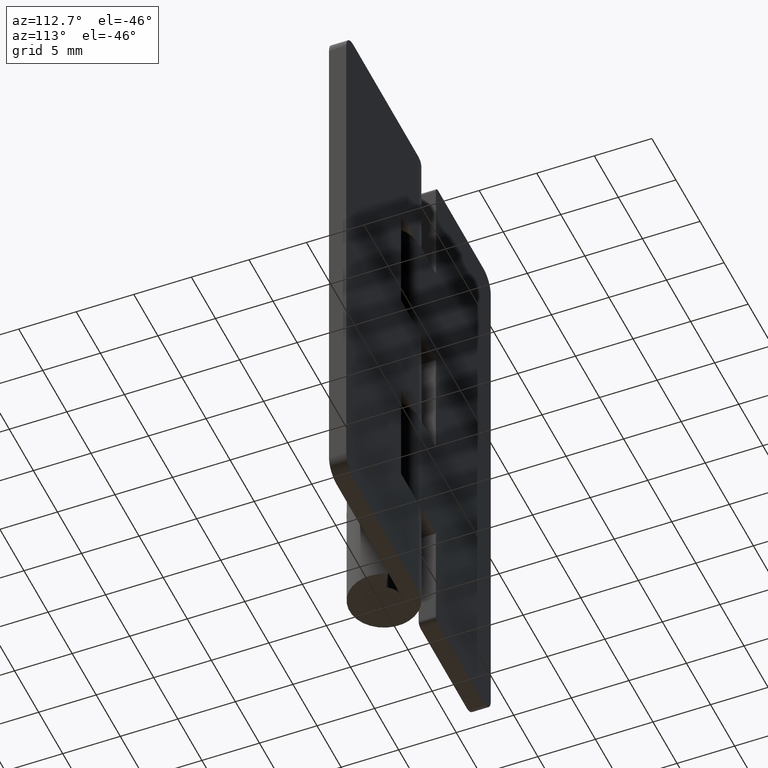
[diagram: clean part render]
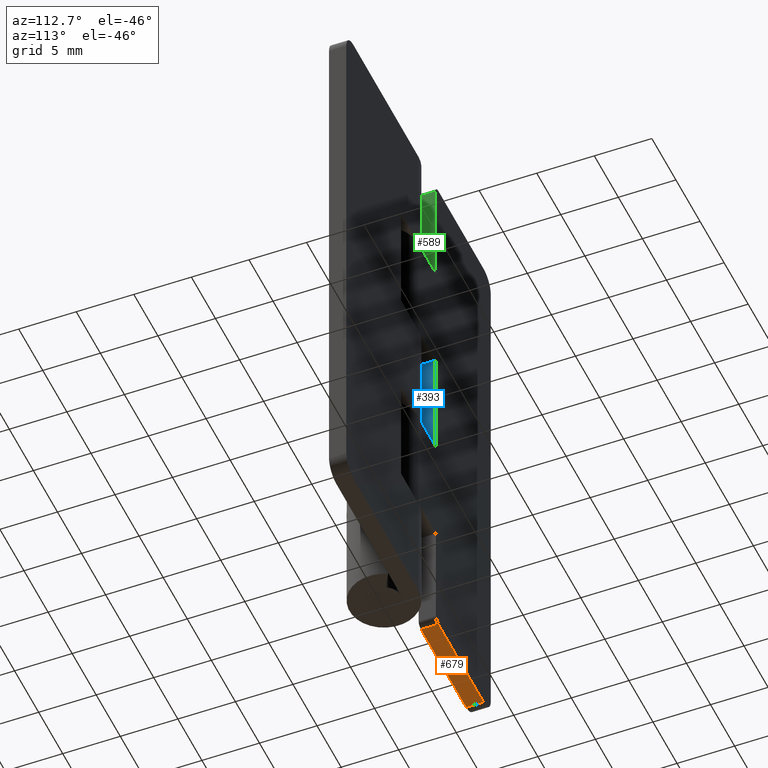
[diagram: same view with three faces highlighted in distinct colors, each labeled with its STEP entity id]
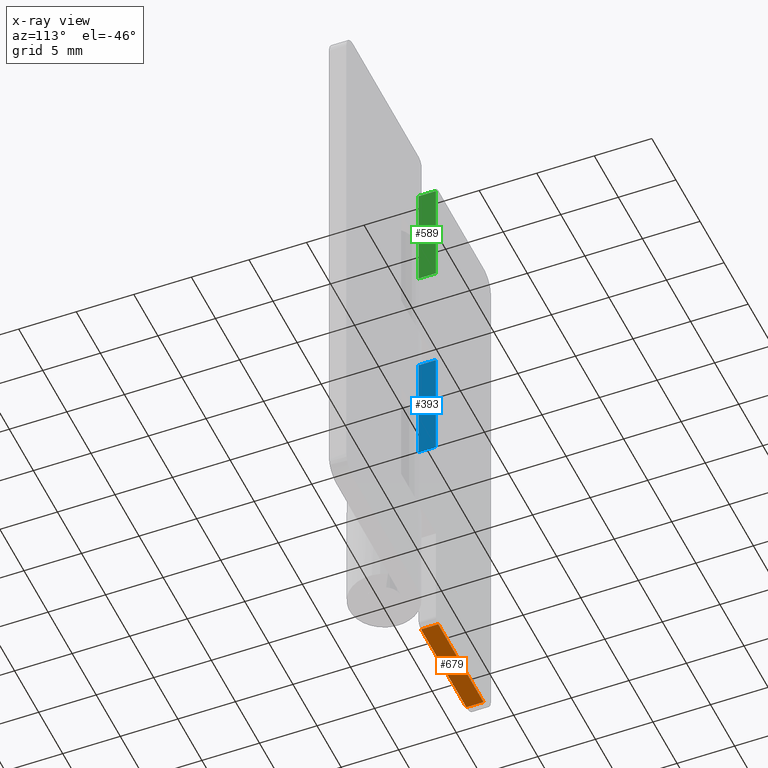
[diagram: x-ray of the same camera — body ghosted, the three highlighted faces saturated]
A machine part, auxiliary view with three faces highlighted in distinct colors.
The next image is the same camera in x-ray (body ghosted, the three faces saturated) — at least one of them is partly hidden behind the body in this view.
Their STEP definitions:

[orange] entity #679 — the highlighted face is a freeform B-spline surface patch.
#119=CARTESIAN_POINT('',(-4.099997999999999,1.500000000000000,0.0));
#120=VERTEX_POINT('',#119);
#136=CARTESIAN_POINT('',(-4.099997999999999,3.0,0.0));
#137=VERTEX_POINT('',#136);
#138=CARTESIAN_POINT('',(-4.099997999999999,3.0,0.0));
#139=CARTESIAN_POINT('',(-4.099997999999999,1.500000000000000,0.0));
#140=QUASI_UNIFORM_CURVE('',1,(#138,#139),.UNSPECIFIED.,.F.,.U.);
#141=EDGE_CURVE('',#137,#120,#140,.T.);
#243=CARTESIAN_POINT('',(-13.500000000000000,1.500000000000000,0.0));
#244=VERTEX_POINT('',#243);
#265=CARTESIAN_POINT('',(-13.500000000000000,3.0,0.0));
#266=VERTEX_POINT('',#265);
#280=CARTESIAN_POINT('',(-13.500000000000000,1.500000000000000,0.0));
#281=CARTESIAN_POINT('',(-13.500000000000000,3.0,0.0));
#282=QUASI_UNIFORM_CURVE('',1,(#280,#281),.UNSPECIFIED.,.F.,.U.);
#283=EDGE_CURVE('',#244,#266,#282,.T.);
#660=CARTESIAN_POINT('',(-13.969530081680970,1.425075002907291,0.0));
#661=CARTESIAN_POINT('',(-3.630467666191326,1.425075002907291,0.0));
#662=CARTESIAN_POINT('',(-13.969530081680970,3.074925037325845,0.0));
#663=CARTESIAN_POINT('',(-3.630467666191326,3.074925037325845,0.0));
#664=B_SPLINE_SURFACE_WITH_KNOTS('',1,1,((#660,#662),(#661,#663)),.UNSPECIFIED.,.F.,.F.,.U.,(2,2),(2,2),(0.0,10.339062415489650),(0.041708334948495,0.958291687403247),.UNSPECIFIED.);
#665=CARTESIAN_POINT('',(-13.500000000000000,3.0,0.0));
#666=CARTESIAN_POINT('',(-4.099997999999999,3.0,0.0));
#667=QUASI_UNIFORM_CURVE('',1,(#665,#666),.UNSPECIFIED.,.F.,.U.);
#668=EDGE_CURVE('',#266,#137,#667,.T.);
#669=ORIENTED_EDGE('',*,*,#668,.T.);
#670=ORIENTED_EDGE('',*,*,#141,.T.);
#671=CARTESIAN_POINT('',(-4.099997999999999,1.500000000000000,0.0));
#672=CARTESIAN_POINT('',(-13.500000000000000,1.500000000000000,0.0));
#673=QUASI_UNIFORM_CURVE('',1,(#671,#672),.UNSPECIFIED.,.F.,.U.);
#674=EDGE_CURVE('',#120,#244,#673,.T.);
#675=ORIENTED_EDGE('',*,*,#674,.T.);
#676=ORIENTED_EDGE('',*,*,#283,.T.);
#677=EDGE_LOOP('',(#669,#670,#675,#676));
#678=FACE_OUTER_BOUND('',#677,.T.);
#679=ADVANCED_FACE('',(#678),#664,.F.);

[blue] entity #393 — the highlighted face is a freeform B-spline surface patch.
#293=CARTESIAN_POINT('',(-3.599998000000000,3.0,20.0));
#294=VERTEX_POINT('',#293);
#302=CARTESIAN_POINT('',(-3.599998000000000,1.500000000000000,20.0));
#303=VERTEX_POINT('',#302);
#304=CARTESIAN_POINT('',(-3.599998000000000,1.500000000000000,20.0));
#305=CARTESIAN_POINT('',(-3.599998000000000,3.0,20.0));
#306=QUASI_UNIFORM_CURVE('',1,(#304,#305),.UNSPECIFIED.,.F.,.U.);
#307=EDGE_CURVE('',#303,#294,#306,.T.);
#366=CARTESIAN_POINT('',(-3.599998000000000,1.425075002907234,30.499499980618062));
#367=CARTESIAN_POINT('',(-3.599998000000000,1.425075002907234,19.500499751161041));
#368=CARTESIAN_POINT('',(-3.599998000000000,3.074925037325847,30.499499980618062));
#369=CARTESIAN_POINT('',(-3.599998000000000,3.074925037325847,19.500499751161041));
#370=B_SPLINE_SURFACE_WITH_KNOTS('',1,1,((#366,#368),(#367,#369)),.UNSPECIFIED.,.F.,.F.,.U.,(2,2),(2,2),(0.0,10.999000229457030),(0.041708334948495,0.958291687403247),.UNSPECIFIED.);
#371=ORIENTED_EDGE('',*,*,#307,.T.);
#372=CARTESIAN_POINT('',(-3.599998000000000,3.0,30.0));
#373=VERTEX_POINT('',#372);
#374=CARTESIAN_POINT('',(-3.599998000000000,3.0,30.0));
#375=CARTESIAN_POINT('',(-3.599998000000000,3.0,20.0));
#376=QUASI_UNIFORM_CURVE('',1,(#374,#375),.UNSPECIFIED.,.F.,.U.);
#377=EDGE_CURVE('',#373,#294,#376,.T.);
#378=ORIENTED_EDGE('',*,*,#377,.F.);
#379=CARTESIAN_POINT('',(-3.599998000000000,1.499999999999946,30.0));
#380=VERTEX_POINT('',#379);
#381=CARTESIAN_POINT('',(-3.599998000000000,1.499999999999946,30.0));
#382=CARTESIAN_POINT('',(-3.599998000000000,3.0,30.0));
#383=QUASI_UNIFORM_CURVE('',1,(#381,#382),.UNSPECIFIED.,.F.,.U.);
#384=EDGE_CURVE('',#380,#373,#383,.T.);
#385=ORIENTED_EDGE('',*,*,#384,.F.);
#386=CARTESIAN_POINT('',(-3.599998000000000,1.500000000000000,20.0));
#387=CARTESIAN_POINT('',(-3.599998000000000,1.499999999999946,30.0));
#388=QUASI_UNIFORM_CURVE('',1,(#386,#387),.UNSPECIFIED.,.F.,.U.);
#389=EDGE_CURVE('',#303,#380,#388,.T.);
#390=ORIENTED_EDGE('',*,*,#389,.F.);
#391=EDGE_LOOP('',(#371,#378,#385,#390));
#392=FACE_OUTER_BOUND('',#391,.T.);
#393=ADVANCED_FACE('',(#392),#370,.T.);

[green] entity #589 — the highlighted face is a freeform B-spline surface patch.
#58=CARTESIAN_POINT('',(-3.599998000000000,1.500000000000000,49.500000000000000));
#59=VERTEX_POINT('',#58);
#75=CARTESIAN_POINT('',(-3.599998000000000,3.0,49.500000000000000));
#76=VERTEX_POINT('',#75);
#77=CARTESIAN_POINT('',(-3.599998000000000,3.0,49.500000000000000));
#78=CARTESIAN_POINT('',(-3.599998000000000,1.500000000000000,49.500000000000000));
#79=QUASI_UNIFORM_CURVE('',1,(#77,#78),.UNSPECIFIED.,.F.,.U.);
#80=EDGE_CURVE('',#76,#59,#79,.T.);
#562=CARTESIAN_POINT('',(-3.599998000000000,1.425075002907235,39.525475018412841));
#563=CARTESIAN_POINT('',(-3.599998000000000,1.425075002907235,49.974525236397028));
#564=CARTESIAN_POINT('',(-3.599998000000000,3.074925037325848,39.525475018412841));
#565=CARTESIAN_POINT('',(-3.599998000000000,3.074925037325848,49.974525236397028));
#566=B_SPLINE_SURFACE_WITH_KNOTS('',1,1,((#562,#564),(#563,#565)),.UNSPECIFIED.,.F.,.F.,.U.,(2,2),(2,2),(0.0,10.449050217984190),(0.041708334948495,0.958291687403247),.UNSPECIFIED.);
#567=CARTESIAN_POINT('',(-3.599998000000000,3.0,40.0));
#568=VERTEX_POINT('',#567);
#569=CARTESIAN_POINT('',(-3.599998000000000,3.0,40.0));
#570=CARTESIAN_POINT('',(-3.599998000000000,3.0,49.500000000000000));
#571=QUASI_UNIFORM_CURVE('',1,(#569,#570),.UNSPECIFIED.,.F.,.U.);
#572=EDGE_CURVE('',#568,#76,#571,.T.);
#573=ORIENTED_EDGE('',*,*,#572,.T.);
#574=ORIENTED_EDGE('',*,*,#80,.T.);
#575=CARTESIAN_POINT('',(-3.599998000000000,1.499999999999946,40.0));
#576=VERTEX_POINT('',#575);
#577=CARTESIAN_POINT('',(-3.599998000000000,1.500000000000000,49.500000000000000));
#578=CARTESIAN_POINT('',(-3.599998000000000,1.499999999999946,40.0));
#579=QUASI_UNIFORM_CURVE('',1,(#577,#578),.UNSPECIFIED.,.F.,.U.);
#580=EDGE_CURVE('',#59,#576,#579,.T.);
#581=ORIENTED_EDGE('',*,*,#580,.T.);
#582=CARTESIAN_POINT('',(-3.599998000000000,1.499999999999946,40.0));
#583=CARTESIAN_POINT('',(-3.599998000000000,3.0,40.0));
#584=QUASI_UNIFORM_CURVE('',1,(#582,#583),.UNSPECIFIED.,.F.,.U.);
#585=EDGE_CURVE('',#576,#568,#584,.T.);
#586=ORIENTED_EDGE('',*,*,#585,.T.);
#587=EDGE_LOOP('',(#573,#574,#581,#586));
#588=FACE_OUTER_BOUND('',#587,.T.);
#589=ADVANCED_FACE('',(#588),#566,.F.);